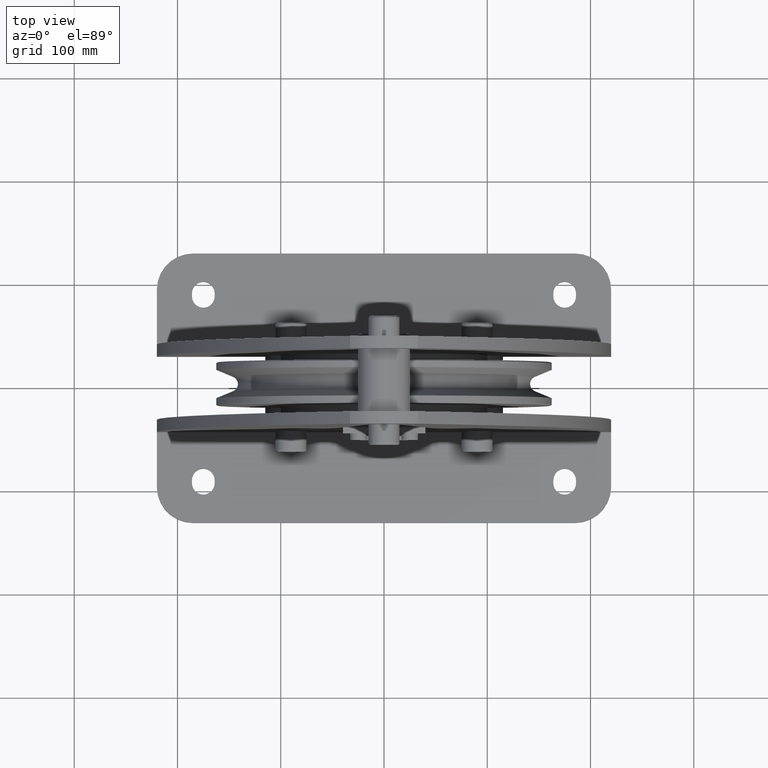
[diagram: clean part render]
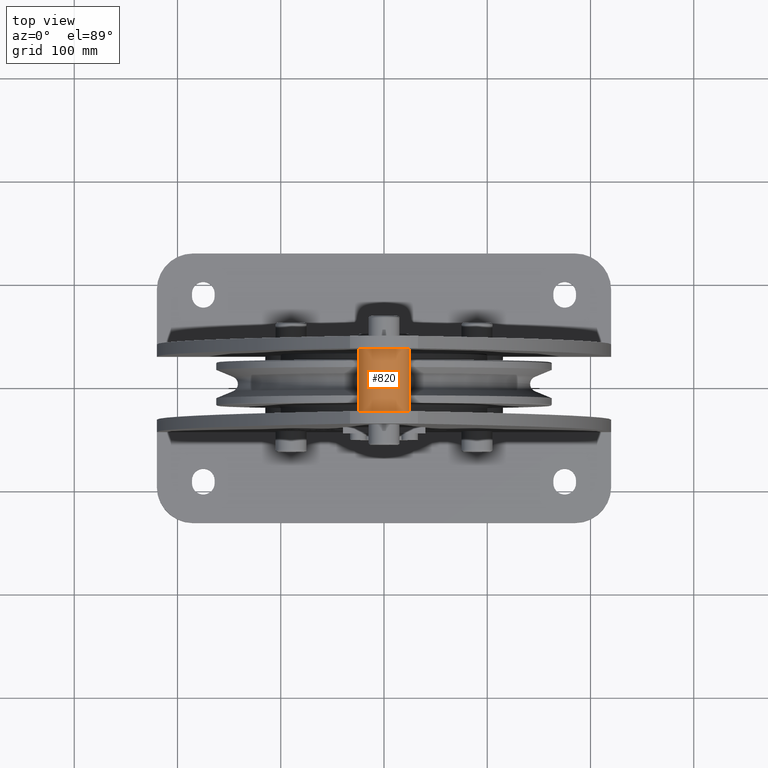
[diagram: same view with one face highlighted and labeled with its STEP entity id]
A machine part, top view. The second image highlights one B-rep face of the part: STEP entity #820.
In plain terms, the highlighted cylindrical surface (edge-blend (fillet) strip) has radius 25 mm, axis along (0, -1, 0).
Its self-contained STEP definition (entity closure, byte-faithful):
#820=ADVANCED_FACE('',(#2203),#2204,.T.);
#2203=FACE_OUTER_BOUND('',#4235,.T.);
#2204=CYLINDRICAL_SURFACE('',#4236,25.0);
#4235=EDGE_LOOP('',(#6796,#6797,#6798,#6799));
#4236=AXIS2_PLACEMENT_3D('',#6800,#6801,#6802);
#6796=ORIENTED_EDGE('',*,*,#12540,.F.);
#6797=ORIENTED_EDGE('',*,*,#12541,.F.);
#6798=ORIENTED_EDGE('',*,*,#12542,.F.);
#6799=ORIENTED_EDGE('',*,*,#12543,.F.);
#6800=CARTESIAN_POINT('',(0.0,0.0,198.0));
#6801=DIRECTION('',(0.0,-1.0,0.0));
#6802=DIRECTION('',(1.0,0.0,0.0));
#12540=EDGE_CURVE('',#15246,#15247,#15248,.T.);
#12541=EDGE_CURVE('',#15249,#15246,#15250,.T.);
#12542=EDGE_CURVE('',#15251,#15249,#15252,.T.);
#12543=EDGE_CURVE('',#15247,#15251,#15253,.T.);
#15246=VERTEX_POINT('',#22100);
#15247=VERTEX_POINT('',#22101);
#15248=LINE('',#22102,#22103);
#15249=VERTEX_POINT('',#22104);
#15250=CIRCLE('',#22105,25.0);
#15251=VERTEX_POINT('',#22106);
#15252=LINE('',#22107,#22108);
#15253=CIRCLE('',#22109,25.0);
#22100=CARTESIAN_POINT('',(25.0,30.5,198.0));
#22101=CARTESIAN_POINT('',(25.0,-30.5,198.0));
#22102=CARTESIAN_POINT('',(25.0,0.0,198.0));
#22103=VECTOR('',#27451,1.0);
#22104=CARTESIAN_POINT('',(-25.0,30.5,198.0));
#22105=AXIS2_PLACEMENT_3D('',#27452,#27453,#27454);
#22106=CARTESIAN_POINT('',(-25.0,-30.5,198.0));
#22107=CARTESIAN_POINT('',(-25.0,0.0,198.0));
#22108=VECTOR('',#27455,1.0);
#22109=AXIS2_PLACEMENT_3D('',#27456,#27457,#27458);
#27451=DIRECTION('',(0.0,-1.0,0.0));
#27452=CARTESIAN_POINT('',(0.0,30.5,198.0));
#27453=DIRECTION('',(-0.0,1.0,0.0));
#27454=DIRECTION('',(1.0,0.0,0.0));
#27455=DIRECTION('',(-0.0,1.0,-0.0));
#27456=CARTESIAN_POINT('',(0.0,-30.5,198.0));
#27457=DIRECTION('',(0.0,-1.0,0.0));
#27458=DIRECTION('',(1.0,0.0,0.0));